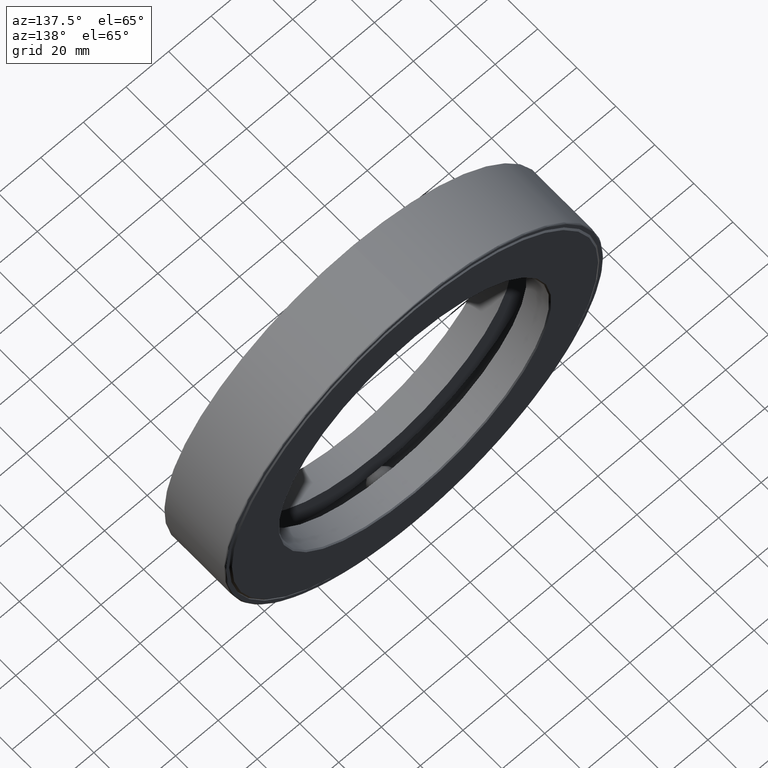
[diagram: clean part render]
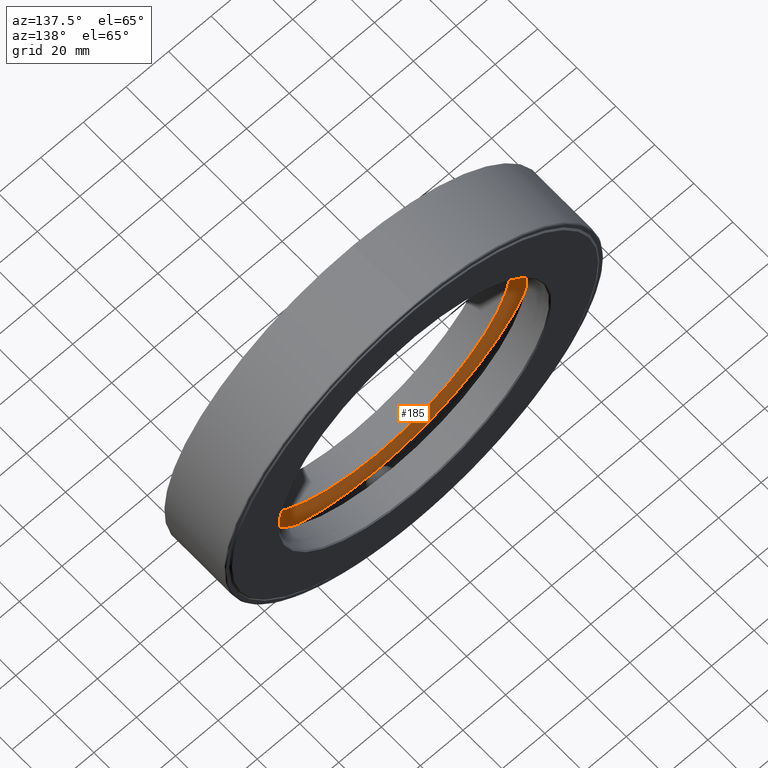
[diagram: same view with one face highlighted and labeled with its STEP entity id]
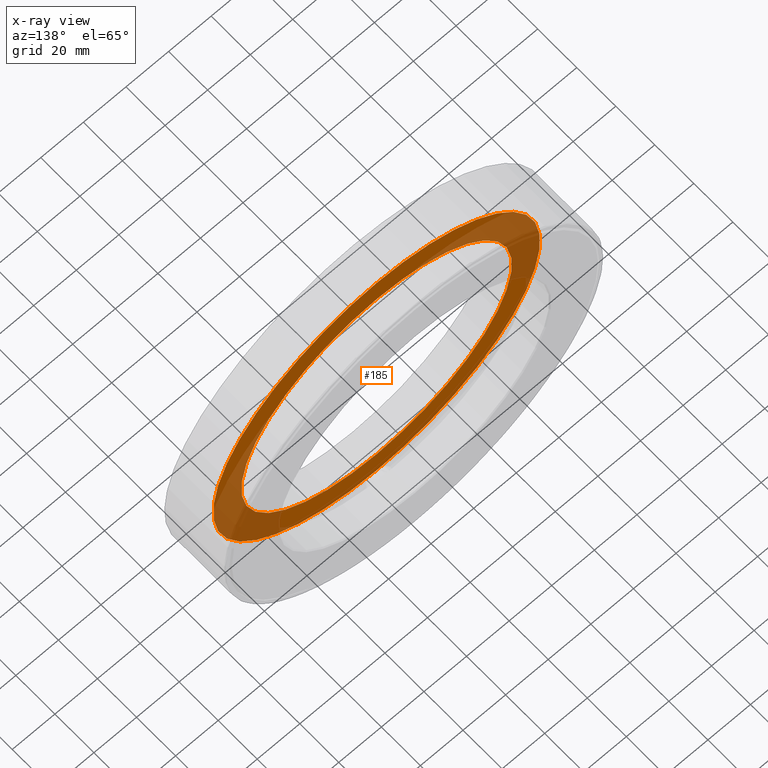
[diagram: x-ray of the same camera — body ghosted, the highlighted face saturated]
A machine part, auxiliary view. The second image highlights one B-rep face of the part: STEP entity #185.
The next image is the same camera in x-ray: the body ghosted, the highlighted face saturated — about 38% of this face is hidden behind the body in this view.
In plain terms, the highlighted planar face has unit normal (0, -1, 0).
Its self-contained STEP definition (entity closure, byte-faithful):
#4 = AXIS2_PLACEMENT_3D ( 'NONE', #592, #78, #175 ) ;
#41 = ORIENTED_EDGE ( 'NONE', *, *, #524, .F. ) ;
#52 = CIRCLE ( 'NONE', #148, 2.500000000000000000 ) ;
#78 = DIRECTION ( 'NONE',  ( -0.0000000000000000000, 1.000000000000000000, -0.0000000000000000000 ) ) ;
#90 = FACE_OUTER_BOUND ( 'NONE', #606, .T. ) ;
#110 = CIRCLE ( 'NONE', #4, 3.020999999999999500 ) ;
#138 = DIRECTION ( 'NONE',  ( 0.0000000000000000000, 0.0000000000000000000, 1.000000000000000000 ) ) ;
#148 = AXIS2_PLACEMENT_3D ( 'NONE', #454, #363, #138 ) ;
#166 = DIRECTION ( 'NONE',  ( 0.0000000000000000000, -1.000000000000000000, 0.0000000000000000000 ) ) ;
#172 = VERTEX_POINT ( 'NONE', #292 ) ;
#175 = DIRECTION ( 'NONE',  ( 0.0000000000000000000, 0.0000000000000000000, 1.000000000000000000 ) ) ;
#185 = ADVANCED_FACE ( 'NONE', ( #469, #90 ), #581, .F. ) ;
#292 = CARTESIAN_POINT ( 'NONE',  ( 0.0000000000000000000, 0.4750000000000000300, 3.020999999999999500 ) ) ;
#346 = AXIS2_PLACEMENT_3D ( 'NONE', #527, #166, #583 ) ;
#363 = DIRECTION ( 'NONE',  ( -0.0000000000000000000, 1.000000000000000000, -0.0000000000000000000 ) ) ;
#453 = ORIENTED_EDGE ( 'NONE', *, *, #490, .T. ) ;
#454 = CARTESIAN_POINT ( 'NONE',  ( 0.0000000000000000000, 0.4750000000000002000, 0.0000000000000000000 ) ) ;
#460 = VERTEX_POINT ( 'NONE', #562 ) ;
#469 = FACE_BOUND ( 'NONE', #542, .T. ) ;
#490 = EDGE_CURVE ( 'NONE', #172, #172, #110, .T. ) ;
#524 = EDGE_CURVE ( 'NONE', #460, #460, #52, .T. ) ;
#527 = CARTESIAN_POINT ( 'NONE',  ( -1.245324181372868900E-016, 0.4750000000000001400, 0.0000000000000000000 ) ) ;
#542 = EDGE_LOOP ( 'NONE', ( #41 ) ) ;
#562 = CARTESIAN_POINT ( 'NONE',  ( 0.0000000000000000000, 0.4750000000000002000, 2.500000000000000000 ) ) ;
#581 = PLANE ( 'NONE',  #346 ) ;
#583 = DIRECTION ( 'NONE',  ( 0.0000000000000000000, -0.0000000000000000000, -1.000000000000000000 ) ) ;
#592 = CARTESIAN_POINT ( 'NONE',  ( 0.0000000000000000000, 0.4750000000000000300, 0.0000000000000000000 ) ) ;
#606 = EDGE_LOOP ( 'NONE', ( #453 ) ) ;